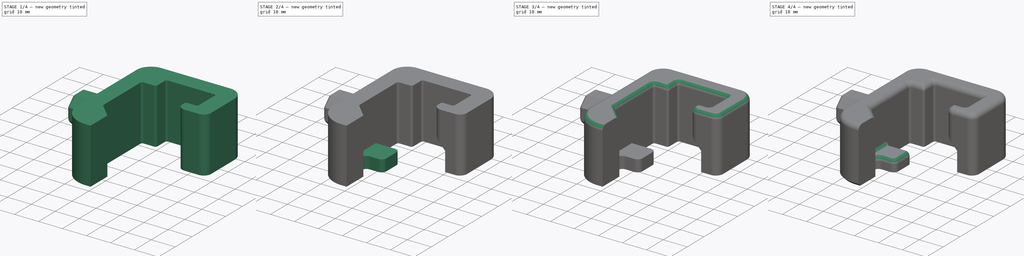
[diagram: build sequence overview — one tinted view per stage of 4, left to right]
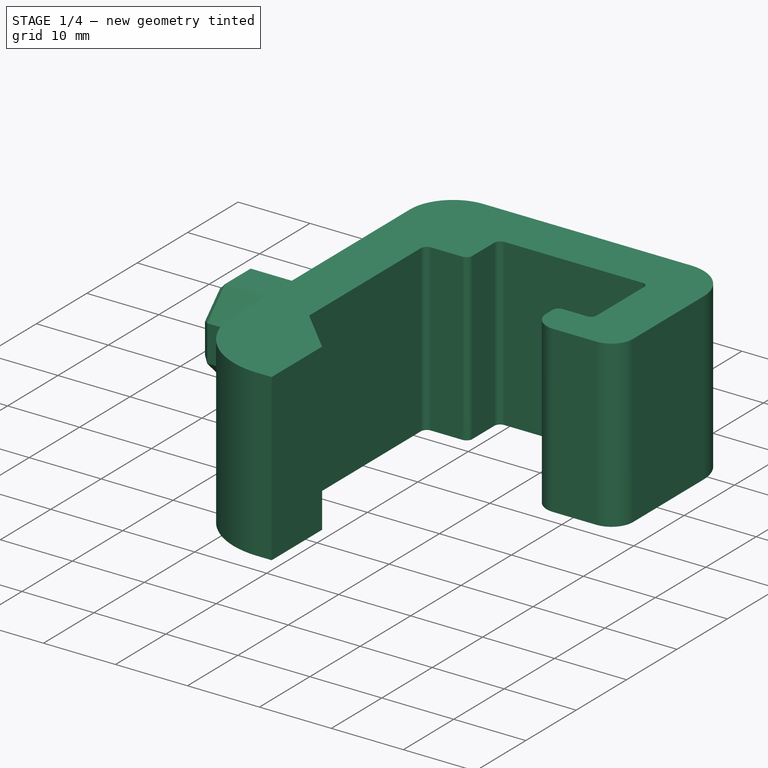
[diagram: stage 1 of 4 — iso view after this stage's code; geometry added in this stage tinted green]
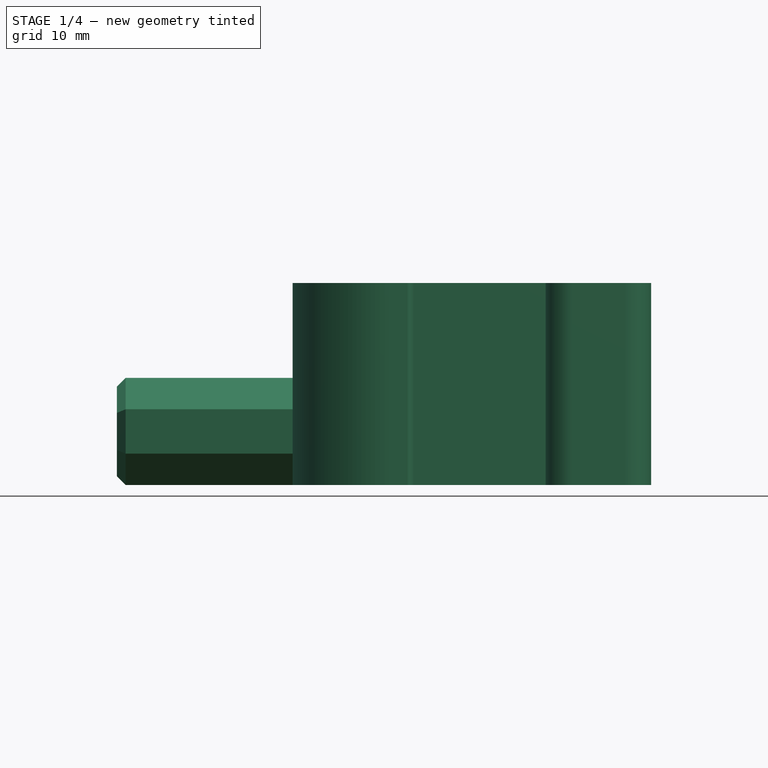
[diagram: stage 1 of 4 — front view after this stage's code; geometry added in this stage tinted green]
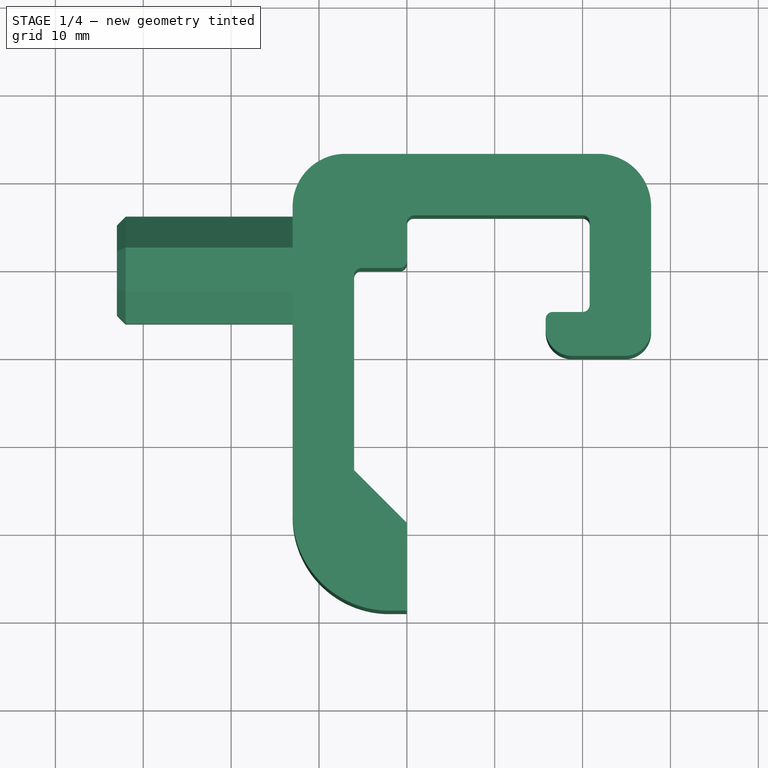
[diagram: stage 1 of 4 — top view after this stage's code; geometry added in this stage tinted green]
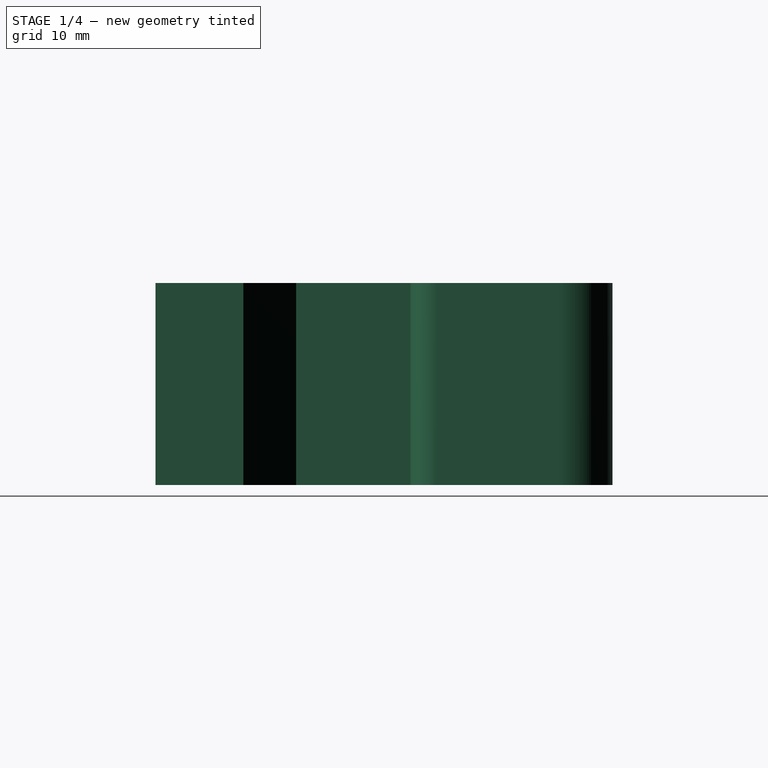
[diagram: stage 1 of 4 — right view after this stage's code; geometry added in this stage tinted green]
FCSTD DOCUMENT  (FreeCAD 0.17R12960 (Git))
Label: ma_Case3
License: All rights reserved
LicenseURL: http://en.wikipedia.org/wiki/All_rights_reserved
objects: PartDesign::Chamfer×6, Sketcher::SketchObject×5, PartDesign::Fillet×5, PartDesign::Pad×4, PartDesign::Pocket×1, PartDesign::Body×1
note: 27 computed .brp shape members not serialized (recipe doc carries the construction recipe); baked Part::Feature solids carry a one-line shape summary decoded from their .brp

FEATURE [Sketcher::SketchObject] Sketch
  MapMode = 5
  Support = -> [XY_Plane]
  sketch-geometry (25):
    g0: LineSegment StartX=0 StartY=0.8 StartZ=0 EndX=0 EndY=5.2 EndZ=0
    g1: LineSegment StartX=0.8 StartY=6 StartZ=0 EndX=20 EndY=6 EndZ=0
    g2: LineSegment StartX=20.8 StartY=5.2 StartZ=0 EndX=20.8 EndY=-4.2 EndZ=0
    g3: LineSegment StartX=20 StartY=-5 StartZ=0 EndX=16.6 EndY=-5 EndZ=0
    g4: LineSegment StartX=15.8 StartY=-5.8 StartZ=0 EndX=15.8 EndY=-7 EndZ=0
    g5: LineSegment StartX=18.8 StartY=-10 StartZ=0 EndX=24.8 EndY=-10 EndZ=0
    g6: LineSegment StartX=27.8 StartY=-7 StartZ=0 EndX=27.8 EndY=7 EndZ=0
    g7: LineSegment StartX=21.8 StartY=13 StartZ=0 EndX=-7 EndY=13 EndZ=0
    g8: LineSegment StartX=-13 StartY=7 StartZ=0 EndX=-13 EndY=-28 EndZ=0
    g9: LineSegment StartX=-2 StartY=-39 StartZ=0 EndX=0 EndY=-39 EndZ=0
    g10: LineSegment StartX=0 StartY=-39 StartZ=0 EndX=0 EndY=-29 EndZ=0
    g11: LineSegment StartX=0 StartY=-29 StartZ=0 EndX=-6 EndY=-23 EndZ=0
    g12: LineSegment StartX=-6 StartY=-23 StartZ=0 EndX=-6 EndY=-0.8 EndZ=0
    g13: LineSegment StartX=-5.2 StartY=0 StartZ=0 EndX=-0.8 EndY=0 EndZ=0
    g14: ArcOfCircle CenterX=0.8 CenterY=5.2 CenterZ=0 NormalX=0 NormalY=0 NormalZ=1 AngleXU=0 Radius=0.8 StartAngle=1.5708 EndAngle=3.14159
    g15: ArcOfCircle CenterX=20 CenterY=5.2 CenterZ=0 NormalX=0 NormalY=0 NormalZ=1 AngleXU=0 Radius=0.8 StartAngle=0 EndAngle=1.5708
    g16: ArcOfCircle CenterX=20 CenterY=-4.2 CenterZ=0 NormalX=0 NormalY=0 NormalZ=1 AngleXU=0 Radius=0.8 StartAngle=4.71239 EndAngle=6.28319
    g17: ArcOfCircle CenterX=16.6 CenterY=-5.8 CenterZ=0 NormalX=0 NormalY=0 NormalZ=1 AngleXU=0 Radius=0.8 StartAngle=1.5708 EndAngle=3.14159
    g18: ArcOfCircle CenterX=-0.8 CenterY=0.8 CenterZ=0 NormalX=0 NormalY=0 NormalZ=1 AngleXU=0 Radius=0.8 StartAngle=4.71239 EndAngle=6.28319
    g19: ArcOfCircle CenterX=-5.2 CenterY=-0.8 CenterZ=0 NormalX=0 NormalY=0 NormalZ=1 AngleXU=0 Radius=0.8 StartAngle=1.5708 EndAngle=3.14159
    g20: ArcOfCircle CenterX=18.8 CenterY=-7 CenterZ=0 NormalX=0 NormalY=0 NormalZ=1 AngleXU=0 Radius=3 StartAngle=3.14159 EndAngle=4.71239
    g21: ArcOfCircle CenterX=24.8 CenterY=-7 CenterZ=0 NormalX=0 NormalY=0 NormalZ=1 AngleXU=0 Radius=3 StartAngle=4.71239 EndAngle=6.28319
    g22: ArcOfCircle CenterX=21.8 CenterY=7 CenterZ=0 NormalX=0 NormalY=0 NormalZ=1 AngleXU=0 Radius=6 StartAngle=0 EndAngle=1.5708
    g23: ArcOfCircle CenterX=-7 CenterY=7 CenterZ=0 NormalX=0 NormalY=0 NormalZ=1 AngleXU=0 Radius=6 StartAngle=1.5708 EndAngle=3.14159
    g24: ArcOfCircle CenterX=-2 CenterY=-28 CenterZ=0 NormalX=0 NormalY=0 NormalZ=1 AngleXU=0 Radius=11 StartAngle=3.14159 EndAngle=4.71239
  constraints (64):
    c: Horizontal(g1)
    c: Vertical(g2)
    c: Horizontal(g3)
    c: Vertical(g4)
    c: Horizontal(g5)
    c: Vertical(g6)
    c: Horizontal(g7)
    c: Vertical(g8)
    c: PointOnObject(g9,g-2)
    c: Horizontal(g9)
    c: Coincident(g9,g10)
    c: PointOnObject(g10,g-2)
    c: Coincident(g10,g11)
    c: Coincident(g11,g12)
    c: Vertical(g12)
    c: Tangent(g0,g14) = 1.5708
    c: Tangent(g1,g14) = 1.5708
    c: Tangent(g2,g15) = 1.5708
    c: Tangent(g1,g15) = 1.5708
    c: Tangent(g3,g16) = 1.5708
    c: Tangent(g2,g16) = 1.5708
    c: Tangent(g4,g17) = -1.5708
    c: Tangent(g3,g17) = -1.5708
    c: Equal(g17,g16)
    c: Equal(g16,g15)
    c: Equal(g15,g14)
    c: Radius(g15) = 0.8
    c: Vertical(g0)
    c: Tangent(g13,g18) = -1.5708
    c: Tangent(g0,g18) = -1.5708
    c: Tangent(g12,g19) = 1.5708
    c: Tangent(g13,g19) = 1.5708
    c: Equal(g19,g18)
    c: Equal(g18,g15)
    c: Horizontal(g13)
    c: PointOnObject(g13,g-1)
    c: DistanceY(g13,g1) = 6
    c: DistanceY(g3,g1) = 11
    c: DistanceX(g4,g2) = 5
    c: DistanceX(g12,g0) = 6
    c: PointOnObject(g0,g-2)
    c: DistanceX(g0,g2) = 20.8
    c: Tangent(g4,g20) = -1.5708
    c: Tangent(g5,g20) = -1.5708
    c: Tangent(g5,g21) = -1.5708
    c: Tangent(g6,g21) = -1.5708
    c: Tangent(g6,g22) = -1.5708
    c: Tangent(g7,g22) = -1.5708
    c: Tangent(g8,g23) = -1.5708
    c: Tangent(g7,g23) = -1.5708
    c: Equal(g20,g21)
    c: Equal(g22,g23)
    c: Radius(g21) = 3
    c: DistanceY(g5,g3) = 5
    c: Radius(g22) = 6
    c: DistanceX(g2,g6) = 7
    c: DistanceY(g1,g7) = 7
    c: Tangent(g9,g24) = -1.5708
    c: Tangent(g8,g24) = -1.5708
    c: DistanceY(g9,g7) = 52
    c: DistanceY(g10,g10) = 10
    c: DistanceX(g8,g11) = 7
    c: Radius(g24) = 11
    c: Angle(g11) = 2.35619
FEATURE [PartDesign::Pad] Pad
  Length = 23
  Length2 = 100
  Profile = -> Sketch
  Type = 0
FEATURE [Sketcher::SketchObject] Sketch001
  MapMode = 5
  Placement = pos=(-13,0,0) rot=(0.57735,-0.57735,-0.57735;2.0944rad)
  Support = -> [Pad]
  sketch-geometry (9):
    g0: LineSegment StartX=2.5267 StartY=0 StartZ=0 EndX=6.1 EndY=3.5733 EndZ=0
    g1: LineSegment StartX=6.1 StartY=3.5733 StartZ=0 EndX=6.1 EndY=8.6267 EndZ=0
    g2: LineSegment StartX=6.1 StartY=8.6267 StartZ=0 EndX=2.5267 EndY=12.2 EndZ=0
    g3: LineSegment StartX=2.5267 StartY=12.2 StartZ=0 EndX=-2.5267 EndY=12.2 EndZ=0
    g4: LineSegment StartX=-2.5267 StartY=12.2 StartZ=0 EndX=-6.1 EndY=8.6267 EndZ=0
    g5: LineSegment StartX=-6.1 StartY=8.6267 StartZ=0 EndX=-6.1 EndY=3.5733 EndZ=0
    g6: LineSegment StartX=-6.1 StartY=3.5733 StartZ=0 EndX=-2.5267 EndY=0 EndZ=0
    g7: LineSegment StartX=-2.5267 StartY=0 StartZ=0 EndX=2.5267 EndY=0 EndZ=0
    g8: Circle [constr] CenterX=0 CenterY=6.1 CenterZ=0 NormalX=0 NormalY=0 NormalZ=1 AngleXU=0 Radius=6.60259
  constraints (21):
    c: Coincident(g0,g1)
    c: Coincident(g1,g2)
    c: Coincident(g2,g3)
    c: Coincident(g3,g4)
    c: Coincident(g4,g5)
    c: Coincident(g5,g6)
    c: Coincident(g6,g7)
    c: Coincident(g7,g0)
    c: Equal(g0, g1-g7) x7
    c: PointOnObject(g0,g8)
    c: PointOnObject(g1,g8)
    c: PointOnObject(g2,g8)
    c: PointOnObject(g3,g8)
    c: PointOnObject(g4,g8)
    c: PointOnObject(g5,g8)
    c: PointOnObject(g6,g8)
    c: PointOnObject(g7,g8)
    c: PointOnObject(g8,g-2)
    c: Horizontal(g7)
    c: DistanceY(g-1,g8) = 6.1
    c: PointOnObject(g0,g-1)
FEATURE [PartDesign::Pad] Pad001
  BaseFeature = -> Pad
  Length = 20
  Length2 = 100
  Profile = -> Sketch001
  Type = 0
FEATURE [PartDesign::Chamfer] Chamfer
  Base = -> Pad001 [Face36]
  BaseFeature = -> Pad001
  Size = 1
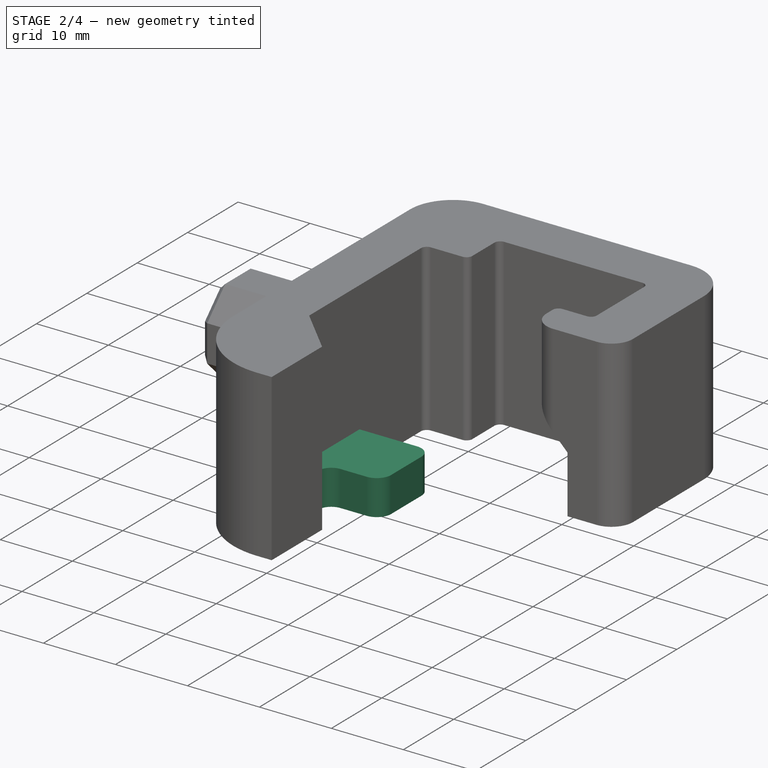
[diagram: stage 2 of 4 — iso view after this stage's code; geometry added in this stage tinted green]
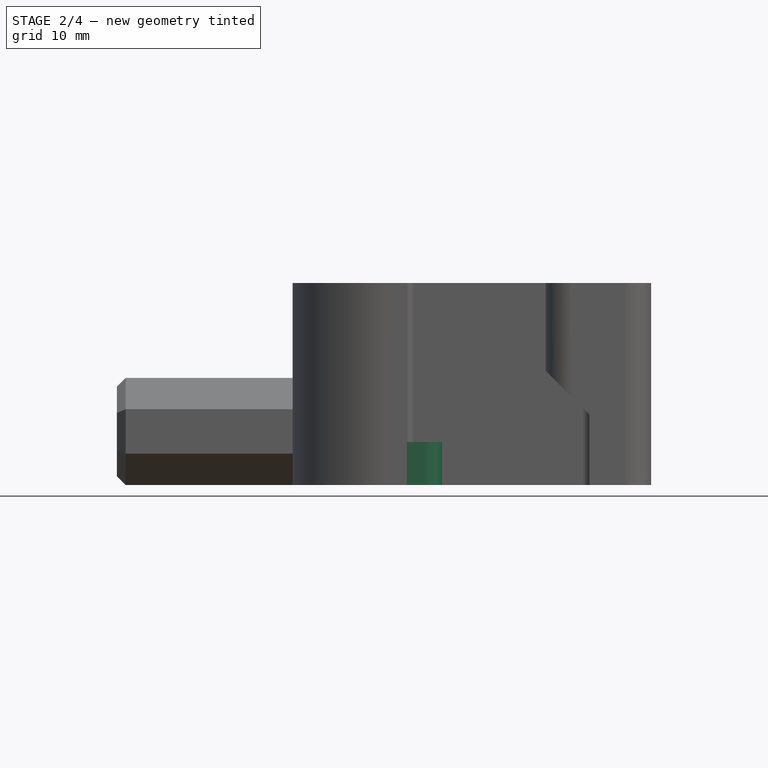
[diagram: stage 2 of 4 — front view after this stage's code; geometry added in this stage tinted green]
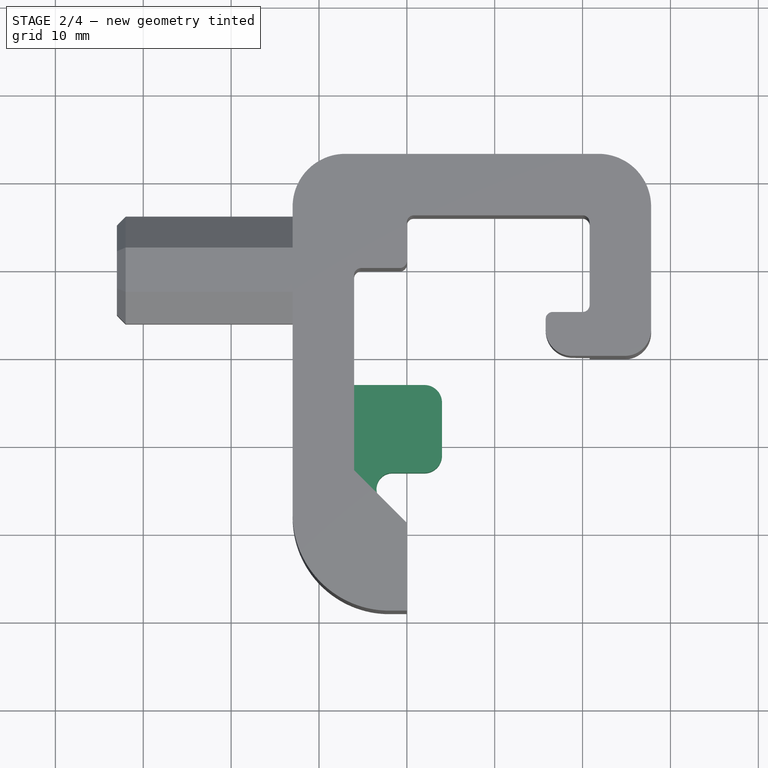
[diagram: stage 2 of 4 — top view after this stage's code; geometry added in this stage tinted green]
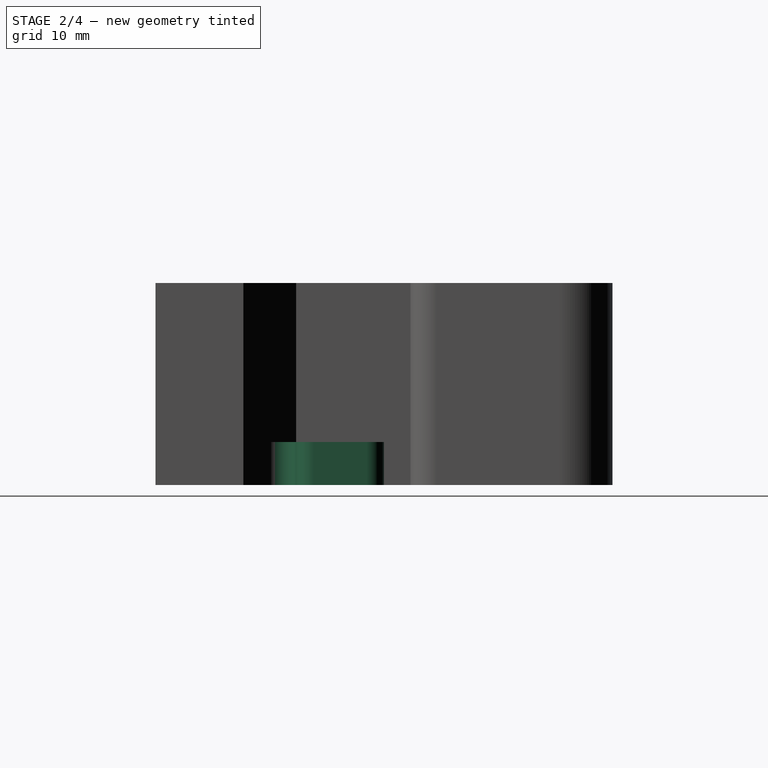
[diagram: stage 2 of 4 — right view after this stage's code; geometry added in this stage tinted green]
FEATURE [Sketcher::SketchObject] Sketch002
  ExternalGeometry = -> [Chamfer]
  MapMode = 5
  Placement = pos=(0,0,0) rot=(1,0,0;3.14159rad)
  Support = -> [Chamfer]
  sketch-geometry (6):
    g0: LineSegment StartX=-6 StartY=23 StartZ=0 EndX=2 EndY=23 EndZ=0
    g1: LineSegment StartX=4 StartY=21 StartZ=0 EndX=4 EndY=15 EndZ=0
    g2: LineSegment StartX=2 StartY=13 StartZ=0 EndX=-6 EndY=13 EndZ=0
    g3: LineSegment StartX=-6 StartY=13 StartZ=0 EndX=-6 EndY=23 EndZ=0
    g4: ArcOfCircle CenterX=2 CenterY=15 CenterZ=0 NormalX=0 NormalY=0 NormalZ=1 AngleXU=0 Radius=2 StartAngle=4.71239 EndAngle=6.28319
    g5: ArcOfCircle CenterX=2 CenterY=21 CenterZ=0 NormalX=0 NormalY=0 NormalZ=1 AngleXU=0 Radius=2 StartAngle=0 EndAngle=1.5708
  constraints (15):
    c: Coincident(g-3,g0)
    c: Horizontal(g0)
    c: Vertical(g1)
    c: PointOnObject(g2,g-3)
    c: Horizontal(g2)
    c: Coincident(g2,g3)
    c: Coincident(g3,g0)
    c: Tangent(g2,g4) = 1.5708
    c: Tangent(g1,g4) = 1.5708
    c: Tangent(g1,g5) = 1.5708
    c: Tangent(g0,g5) = 1.5708
    c: Equal(g4,g5)
    c: Radius(g5) = 2
    c: DistanceY(g3,g3) = 10
    c: DistanceX(g0,g1) = 10
FEATURE [PartDesign::Pad] Pad002
  BaseFeature = -> Chamfer
  Length = 4.9
  Length2 = 100
  Profile = -> Sketch002
  Reversed = true
  Type = 0
FEATURE [PartDesign::Fillet] Fillet
  Base = -> Pad002 [Edge82]
  BaseFeature = -> Pad002
  Radius = 1.8
FEATURE [Sketcher::SketchObject] Sketch003
  ExternalGeometry = -> [Fillet]
  MapMode = 5
  Placement = pos=(0,-5,0) rot=(0,0.707107,0.707107;3.14159rad)
  Support = -> [Fillet]
  sketch-geometry (4):
    g0: LineSegment StartX=-20.8 StartY=0 StartZ=0 EndX=-20.8 EndY=8 EndZ=0
    g1: LineSegment StartX=-20.8 StartY=8 StartZ=0 EndX=-12.8 EndY=16 EndZ=0
    g2: LineSegment StartX=-12.8 StartY=16 StartZ=0 EndX=-12.8 EndY=0 EndZ=0
    g3: LineSegment StartX=-12.8 StartY=0 StartZ=0 EndX=-20.8 EndY=0 EndZ=0
  constraints (11):
    c: Coincident(g0,g-3)
    c: Vertical(g0)
    c: Coincident(g0,g1)
    c: Coincident(g1,g2)
    c: Vertical(g2)
    c: Coincident(g2,g3)
    c: Coincident(g3,g0)
    c: Horizontal(g3)
    c: DistanceY(g0,g0) = 8
    c: Angle(g1) = 0.785398
    c: DistanceX(g3,g3) = 8
FEATURE [PartDesign::Pocket] Pocket
  BaseFeature = -> Fillet
  Length = 11
  Midplane = true
  Profile = -> Sketch003
  Type = 0
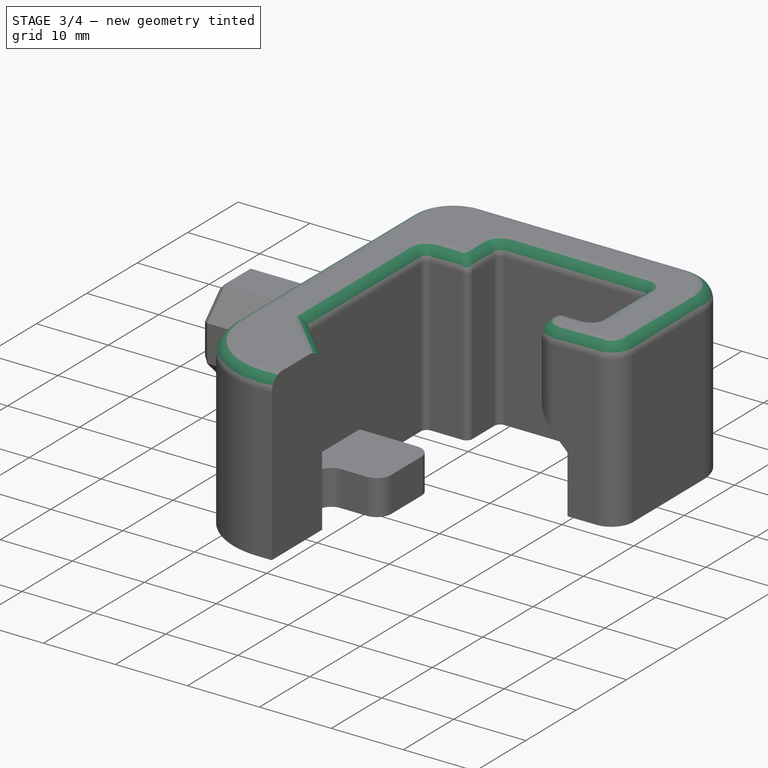
[diagram: stage 3 of 4 — iso view after this stage's code; geometry added in this stage tinted green]
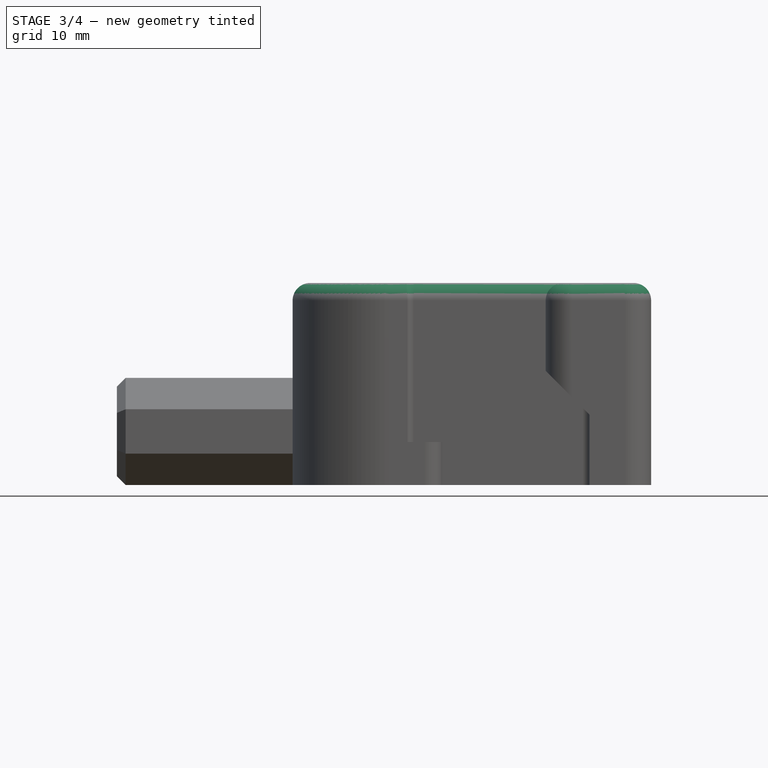
[diagram: stage 3 of 4 — front view after this stage's code; geometry added in this stage tinted green]
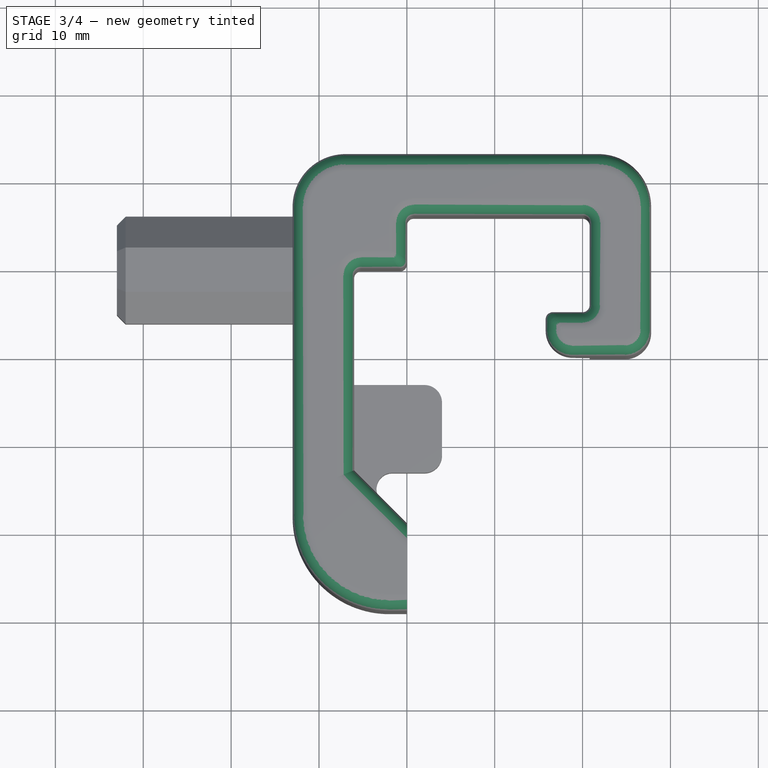
[diagram: stage 3 of 4 — top view after this stage's code; geometry added in this stage tinted green]
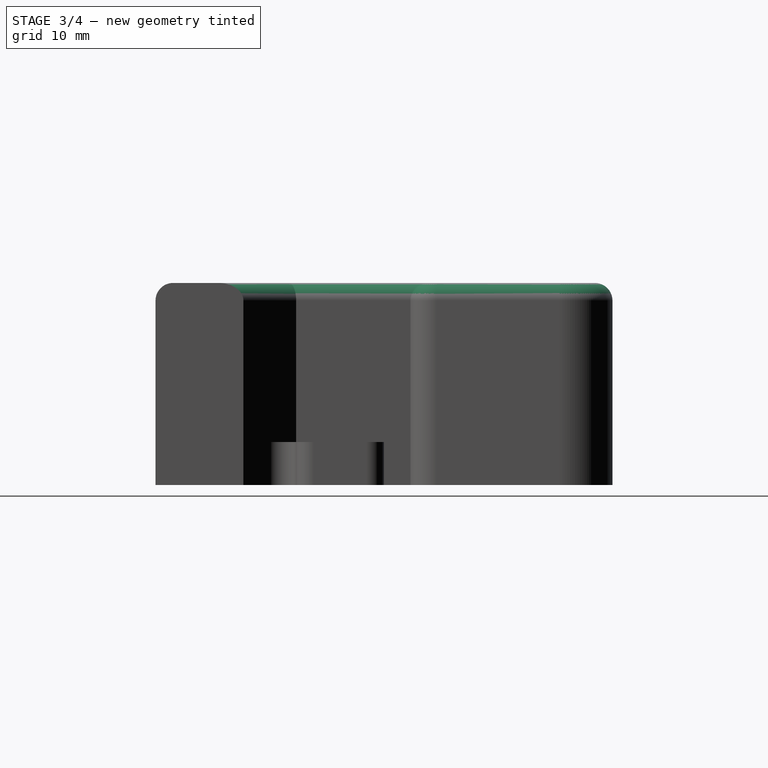
[diagram: stage 3 of 4 — right view after this stage's code; geometry added in this stage tinted green]
FEATURE [PartDesign::Fillet] Fillet001
  Base = -> Pocket [Edge102,Edge60]
  BaseFeature = -> Pocket
  Radius = 2
FEATURE [PartDesign::Fillet] Fillet002
  Base = -> Fillet001 [Edge6]
  BaseFeature = -> Fillet001
  Radius = 2
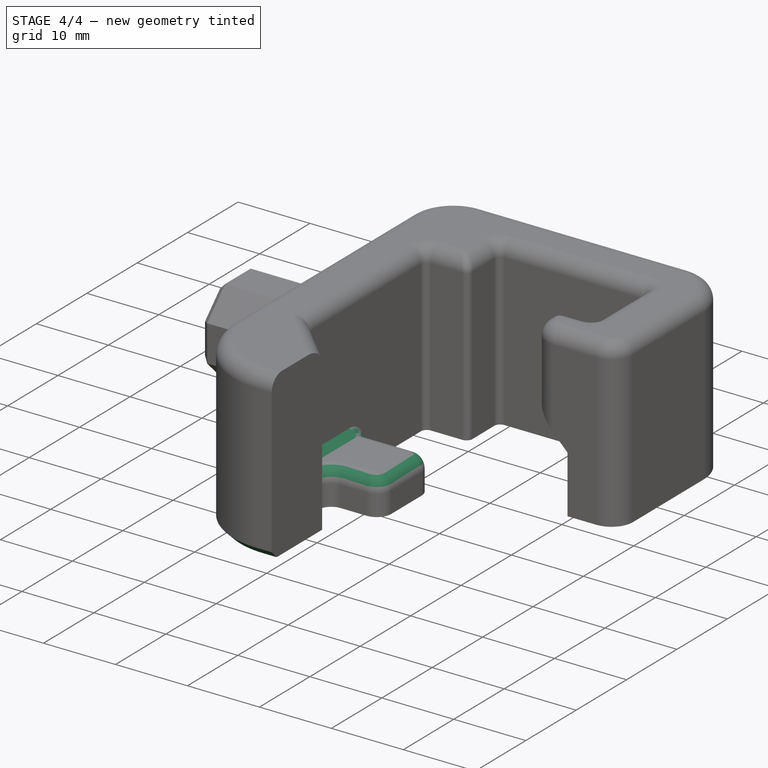
[diagram: stage 4 of 4 — iso view after this stage's code; geometry added in this stage tinted green]
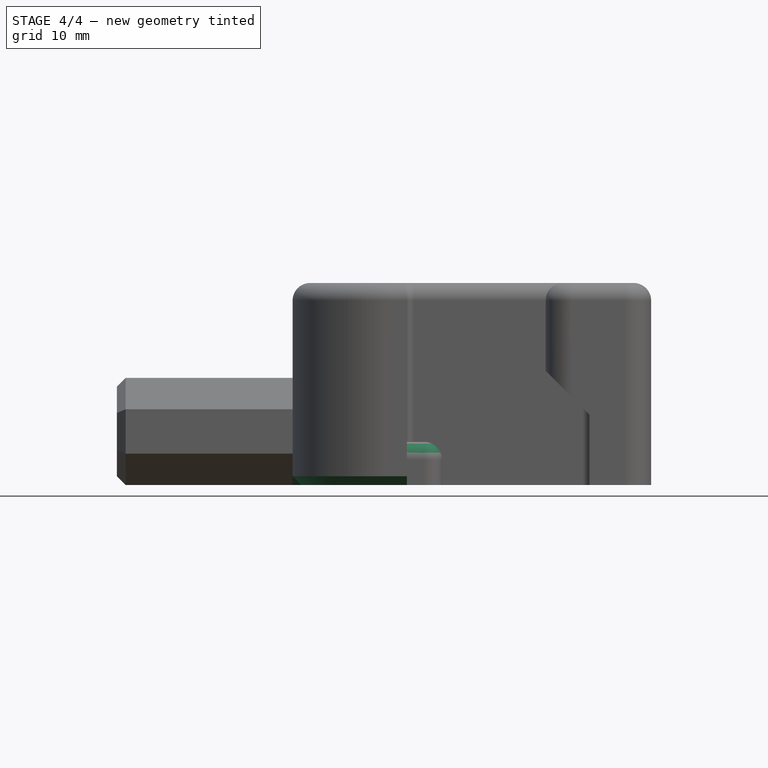
[diagram: stage 4 of 4 — front view after this stage's code; geometry added in this stage tinted green]
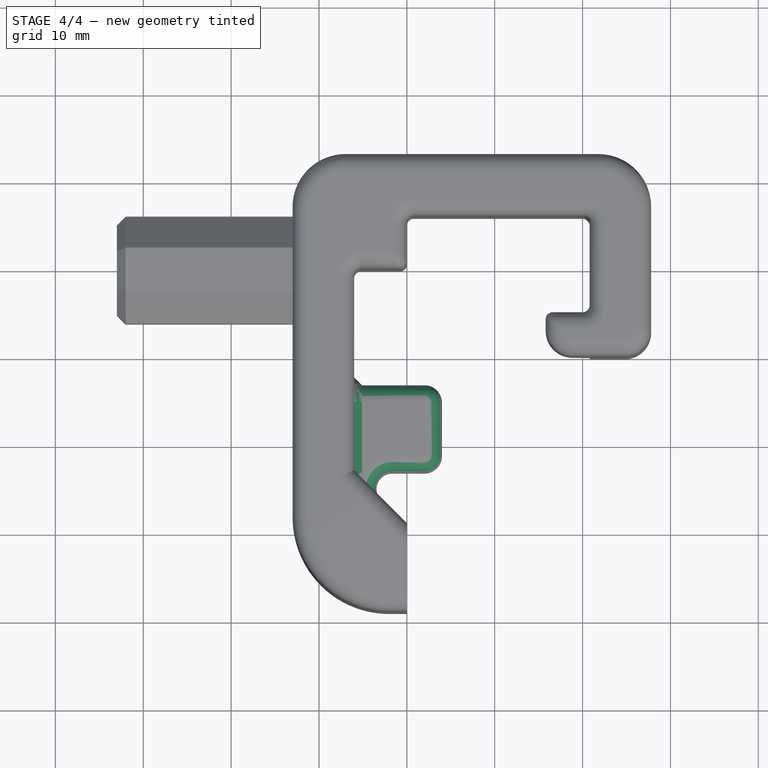
[diagram: stage 4 of 4 — top view after this stage's code; geometry added in this stage tinted green]
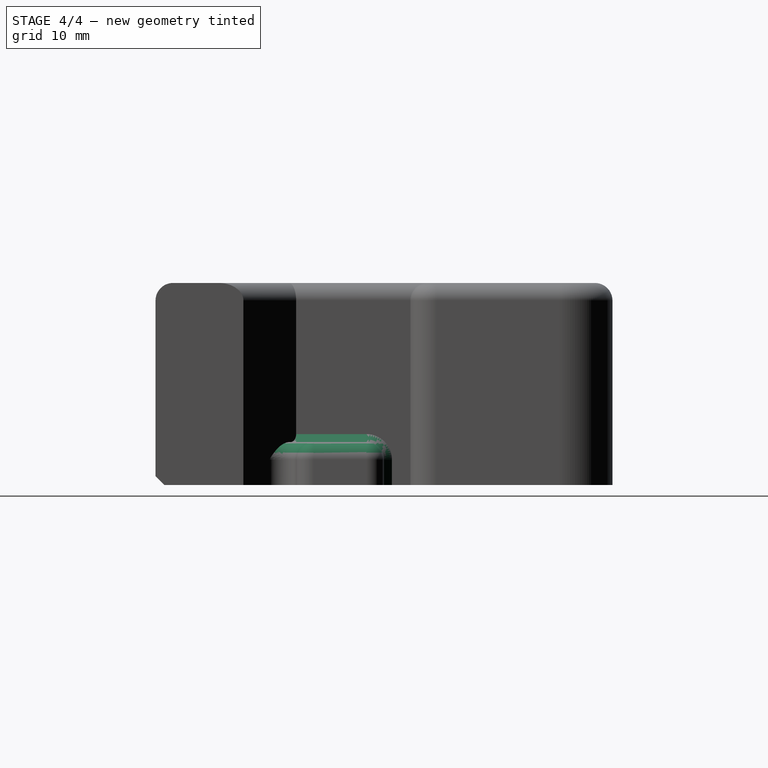
[diagram: stage 4 of 4 — right view after this stage's code; geometry added in this stage tinted green]
FEATURE [PartDesign::Fillet] Fillet003
  Base = -> Fillet002 [Edge47]
  BaseFeature = -> Fillet002
  Radius = 2
FEATURE [PartDesign::Chamfer] Chamfer001
  Base = -> Fillet003 [Edge38]
  BaseFeature = -> Fillet003
  Size = 0.9
FEATURE [PartDesign::Chamfer] Chamfer002
  Base = -> Chamfer001 [Edge41]
  BaseFeature = -> Chamfer001
  Size = 1
FEATURE [PartDesign::Chamfer] Chamfer003
  Base = -> Chamfer002 [Edge4,Edge25,Edge11,Edge13,Edge15,Edge17,Edge22]
  BaseFeature = -> Chamfer002
  Size = 1
FEATURE [Sketcher::SketchObject] Sketch004
  MapMode = 5
  Placement = pos=(0,6,0) rot=(0,0.707107,0.707107;3.14159rad)
  Support = -> [Chamfer003]
  sketch-geometry (7):
    g0: LineSegment StartX=-5 StartY=7.5359 StartZ=0 EndX=-5 EndY=14.4641 EndZ=0
    g1: LineSegment StartX=-5 StartY=14.4641 StartZ=0 EndX=-11 EndY=17.9282 EndZ=0
    g2: LineSegment StartX=-11 StartY=17.9282 StartZ=0 EndX=-17 EndY=14.4641 EndZ=0
    g3: LineSegment StartX=-17 StartY=14.4641 StartZ=0 EndX=-17 EndY=7.5359 EndZ=0
    g4: LineSegment StartX=-17 StartY=7.5359 StartZ=0 EndX=-11 EndY=4.0718 EndZ=0
    g5: LineSegment StartX=-11 StartY=4.0718 StartZ=0 EndX=-5 EndY=7.5359 EndZ=0
    g6: Circle [constr] CenterX=-11 CenterY=11 CenterZ=0 NormalX=0 NormalY=0 NormalZ=1 AngleXU=0 Radius=6.9282
  constraints (17):
    c: Coincident(g0,g1)
    c: Coincident(g1,g2)
    c: Coincident(g2,g3)
    c: Coincident(g3,g4)
    c: Coincident(g4,g5)
    c: Coincident(g5,g0)
    c: Equal(g0, g1-g5) x5
    c: PointOnObject(g0,g6)
    c: PointOnObject(g1,g6)
    c: PointOnObject(g2,g6)
    c: PointOnObject(g3,g6)
    c: PointOnObject(g4,g6)
    c: PointOnObject(g5,g6)
    c: Vertical(g0)
    c: DistanceX(g3,g0) = 12
    c: DistanceY(g-1,g6) = 11
    c: DistanceX(g6,g-1) = 11
FEATURE [PartDesign::Pad] Pad003
  BaseFeature = -> Chamfer003
  Length = 10
  Length2 = 100
  Profile = -> Sketch004
  Type = 0
FEATURE [PartDesign::Chamfer] Chamfer004
  Base = -> Pad003 [Edge159,Edge162,Edge163,Edge164,Edge160,Edge161]
  BaseFeature = -> Pad003
  Size = 2
FEATURE [PartDesign::Chamfer] Chamfer005
  Base = -> Chamfer004 [Edge46,Edge45,Edge41,Edge36,Edge38,Edge42]
  BaseFeature = -> Chamfer004
  Size = 1
FEATURE [PartDesign::Fillet] Fillet004
  Base = -> Chamfer005 [Edge212]
  BaseFeature = -> Chamfer005
  Radius = 1.5
FEATURE [PartDesign::Body] Body
  Group = -> [Sketch,Pad,Sketch001,Pad001,Chamfer,Sketch002,Pad002,Fillet,Sketch003,Pocket,Fillet001,Fillet002,Fillet003,Chamfer001,Chamfer002,Chamfer003,Sketch004,Pad003,Chamfer004,Chamfer005,Fillet004]
  Origin = -> Origin
  Tip = -> Fillet004
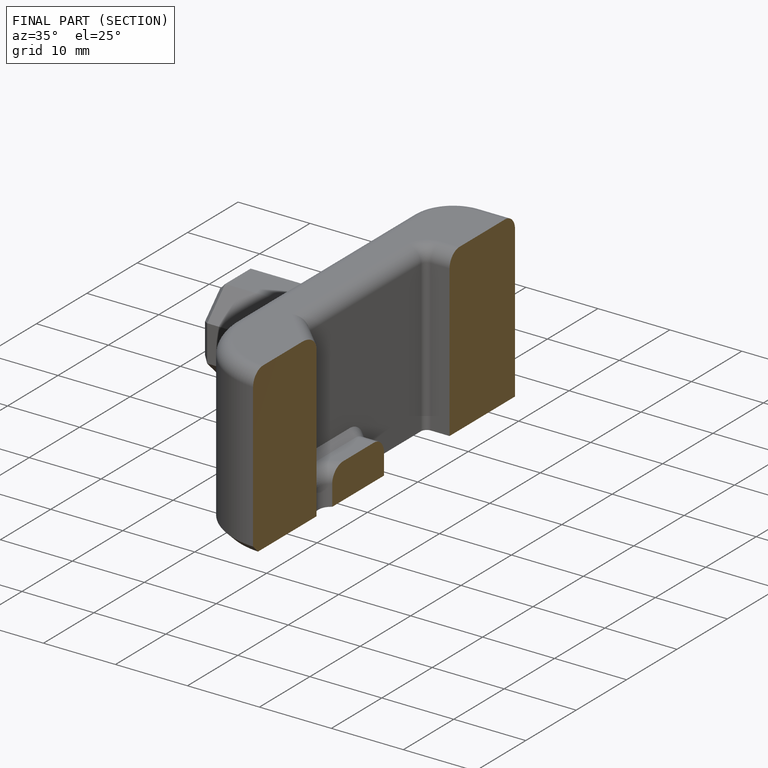
[diagram: finished part — half-section view (interior)]
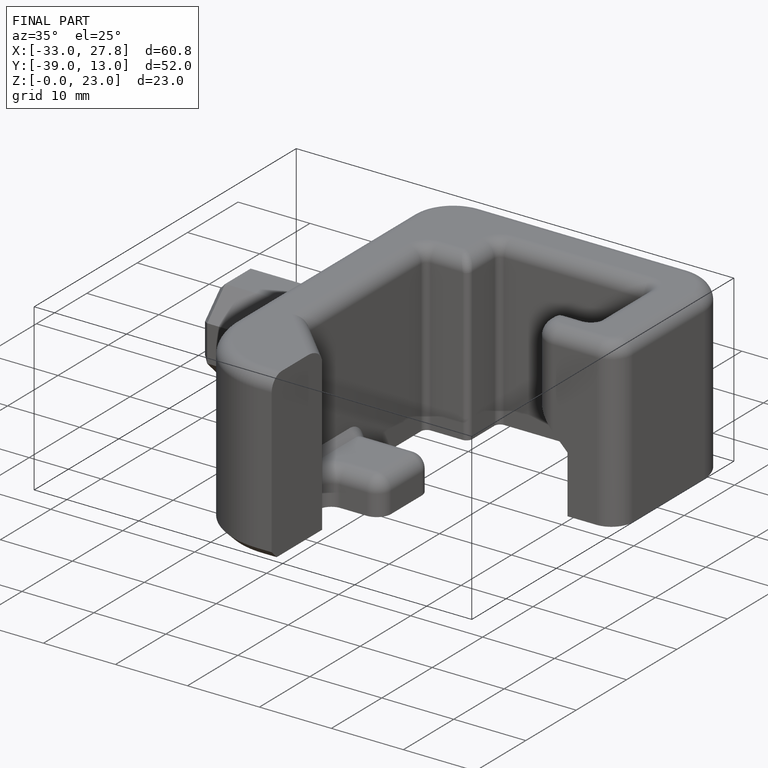
[diagram: finished part — iso view with bounding-box wireframe]
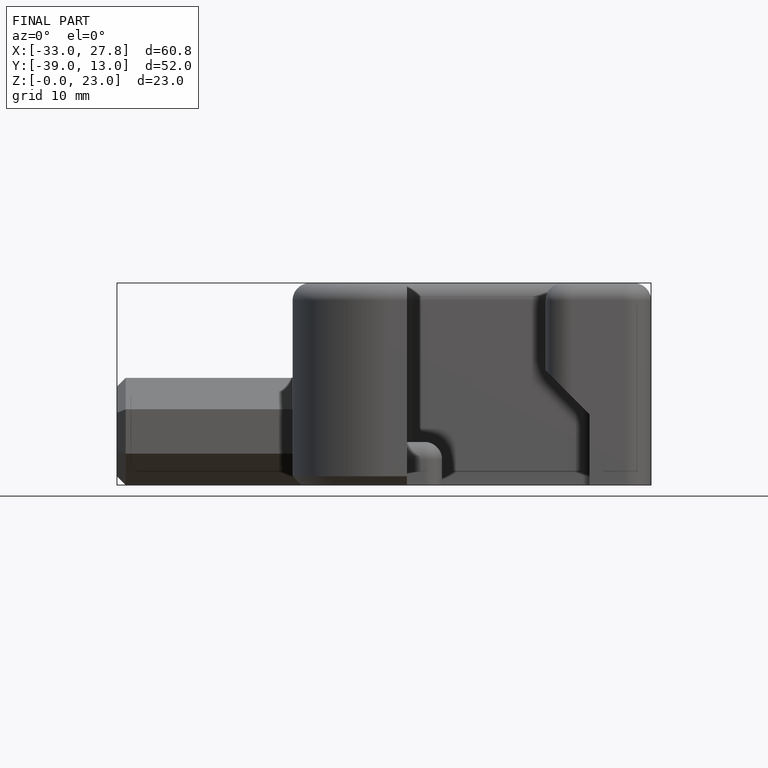
[diagram: finished part — front view with bounding-box wireframe]
